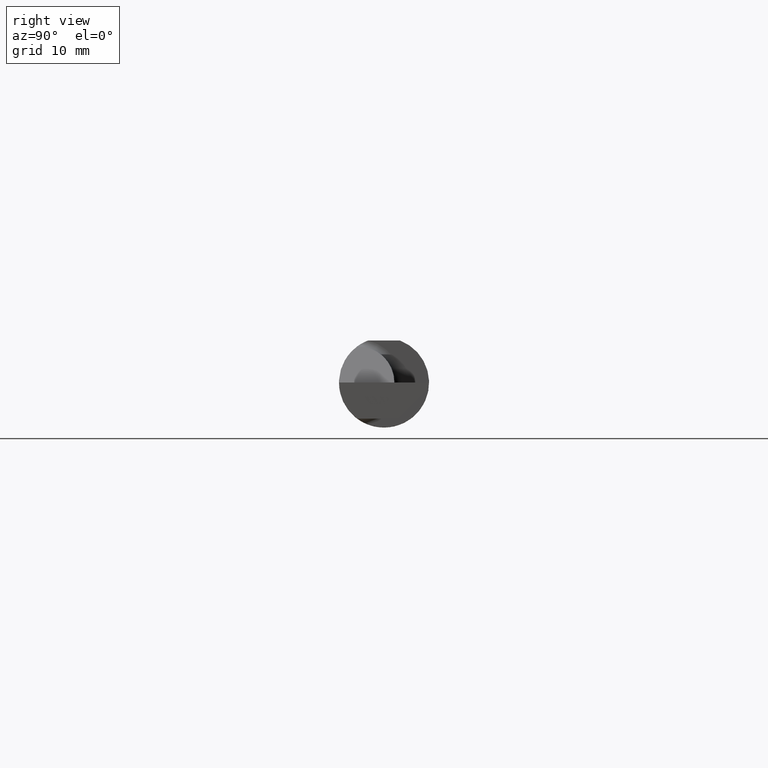
[diagram: clean part render]
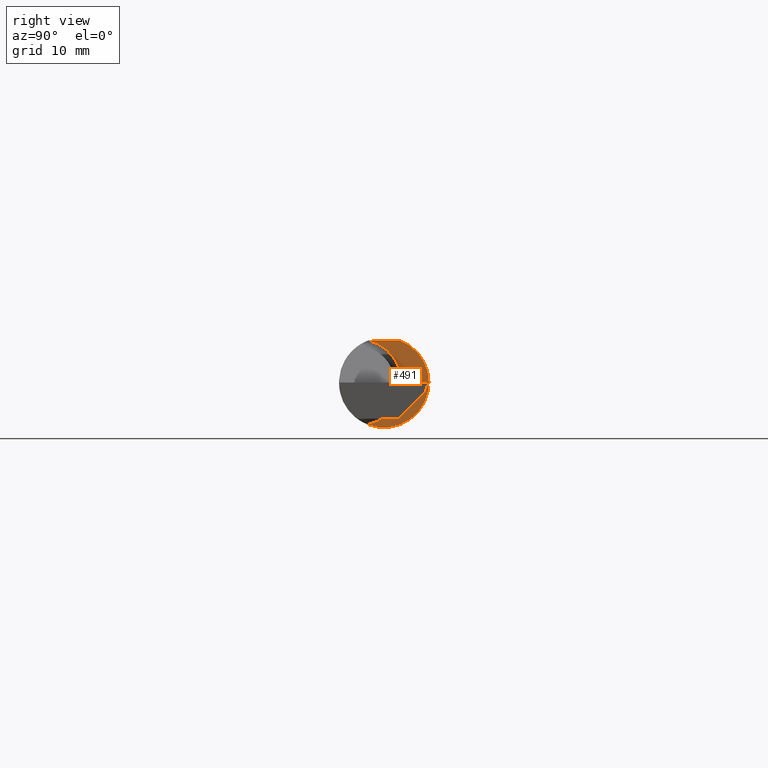
[diagram: same view with one face highlighted and labeled with its STEP entity id]
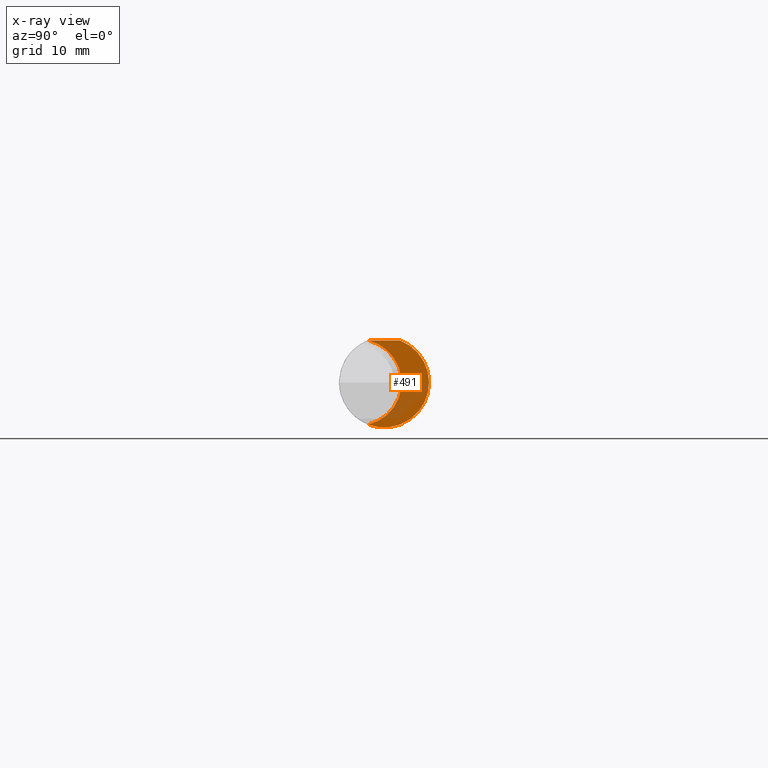
[diagram: x-ray of the same camera — body ghosted, the highlighted face saturated]
A machine part, right view. The second image highlights one B-rep face of the part: STEP entity #491.
The next image is the same camera in x-ray: the body ghosted, the highlighted face saturated — about 30% of this face is hidden behind the body in this view.
In plain terms, the highlighted planar face has unit normal (1, 0, 0).
Its self-contained STEP definition (entity closure, byte-faithful):
#41 = LINE ( 'NONE', #373, #757 ) ;
#63 = DIRECTION ( 'NONE',  ( 0.000000000000000000, 0.000000000000000000, -1.000000000000000000 ) ) ;
#72 = EDGE_CURVE ( 'NONE', #615, #202, #41, .T. ) ;
#93 = VERTEX_POINT ( 'NONE', #517 ) ;
#158 = ORIENTED_EDGE ( 'NONE', *, *, #72, .F. ) ;
#181 = EDGE_CURVE ( 'NONE', #822, #202, #395, .T. ) ;
#202 = VERTEX_POINT ( 'NONE', #382 ) ;
#207 = AXIS2_PLACEMENT_3D ( 'NONE', #547, #907, #63 ) ;
#222 = FACE_OUTER_BOUND ( 'NONE', #327, .T. ) ;
#227 = CARTESIAN_POINT ( 'NONE',  ( 1.950000000000000178, 0.2358999999999999986, 0.000000000000000000 ) ) ;
#232 = DIRECTION ( 'NONE',  ( 0.000000000000000000, 0.000000000000000000, -1.000000000000000000 ) ) ;
#327 = EDGE_LOOP ( 'NONE', ( #1091, #158, #510, #1060 ) ) ;
#362 = CARTESIAN_POINT ( 'NONE',  ( 1.950000000000000178, -0.05502817059483720158, -0.1460791239054557156 ) ) ;
#373 = CARTESIAN_POINT ( 'NONE',  ( 1.950000000000000178, -0.1561000000000000165, 0.1460999999999999799 ) ) ;
#382 = CARTESIAN_POINT ( 'NONE',  ( 1.950000000000000178, 0.05497272050753900657, 0.1460999999999999799 ) ) ;
#395 = CIRCLE ( 'NONE', #207, 0.1560999999999999888 ) ;
#401 = EDGE_CURVE ( 'NONE', #615, #93, #793, .T. ) ;
#466 = DIRECTION ( 'NONE',  ( -1.000000000000000000, -0.000000000000000000, -0.000000000000000000 ) ) ;
#491 = ADVANCED_FACE ( 'NONE', ( #222 ), #648, .T. ) ;
#510 = ORIENTED_EDGE ( 'NONE', *, *, #401, .T. ) ;
#517 = CARTESIAN_POINT ( 'NONE',  ( 1.950000000000000178, -0.05502817059483720158, 0.1460791239054557156 ) ) ;
#539 = DIRECTION ( 'NONE',  ( 1.000000000000000000, 0.000000000000000000, 0.000000000000000000 ) ) ;
#547 = CARTESIAN_POINT ( 'NONE',  ( 1.950000000000000178, 0.000000000000000000, 0.000000000000000000 ) ) ;
#561 = DIRECTION ( 'NONE',  ( 1.000000000000000000, 0.000000000000000000, 0.000000000000000000 ) ) ;
#601 = CARTESIAN_POINT ( 'NONE',  ( 1.950000000000000178, -0.05497272050753899270, 0.1460999999999999799 ) ) ;
#615 = VERTEX_POINT ( 'NONE', #601 ) ;
#648 = PLANE ( 'NONE',  #684 ) ;
#684 = AXIS2_PLACEMENT_3D ( 'NONE', #227, #561, #232 ) ;
#757 = VECTOR ( 'NONE', #942, 39.37007874015748143 ) ;
#793 = CIRCLE ( 'NONE', #883, 0.1560999999999999888 ) ;
#801 = EDGE_CURVE ( 'NONE', #93, #822, #980, .T. ) ;
#808 = DIRECTION ( 'NONE',  ( 0.000000000000000000, 0.000000000000000000, 1.000000000000000000 ) ) ;
#822 = VERTEX_POINT ( 'NONE', #362 ) ;
#874 = AXIS2_PLACEMENT_3D ( 'NONE', #1052, #466, #808 ) ;
#883 = AXIS2_PLACEMENT_3D ( 'NONE', #1036, #539, #886 ) ;
#886 = DIRECTION ( 'NONE',  ( 0.000000000000000000, 0.000000000000000000, -1.000000000000000000 ) ) ;
#907 = DIRECTION ( 'NONE',  ( 1.000000000000000000, 0.000000000000000000, 0.000000000000000000 ) ) ;
#942 = DIRECTION ( 'NONE',  ( -0.000000000000000000, 1.000000000000000000, 0.000000000000000000 ) ) ;
#980 = CIRCLE ( 'NONE', #874, 0.1499999999999999944 ) ;
#1036 = CARTESIAN_POINT ( 'NONE',  ( 1.950000000000000178, 0.000000000000000000, 0.000000000000000000 ) ) ;
#1052 = CARTESIAN_POINT ( 'NONE',  ( 1.950000000000000178, -0.08909999999999998477, 0.000000000000000000 ) ) ;
#1060 = ORIENTED_EDGE ( 'NONE', *, *, #801, .T. ) ;
#1091 = ORIENTED_EDGE ( 'NONE', *, *, #181, .T. ) ;